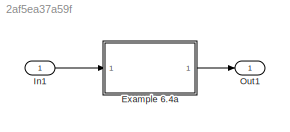
MODEL slx_2af5ea37a59f
KIND model
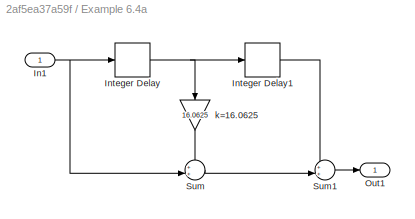
BLOCK [SubSystem] Example 6.4a
  Ports = [1, 1]
  RequestExecContextInheritance = off
BLOCK [Inport] Example 6.4a/In1
  IconDisplay = Port number
BLOCK [Delay] Example 6.4a/Integer Delay
  DelayLength = 4
  InputPortMap = u0
  InputProcessing = Inherited
  Ports = [1, 1]
BLOCK [Delay] Example 6.4a/Integer Delay1
  DelayLength = 4
  InputPortMap = u0
  InputProcessing = Inherited
  Ports = [1, 1]
BLOCK [Outport] Example 6.4a/Out1
  IconDisplay = Port number
BLOCK [Sum] Example 6.4a/Sum
  IconShape = round
  InputSameDT = off
  Inputs = ++|
  OutDataTypeStr = Inherit: Inherit via internal rule
  Ports = [2, 1]
  SaturateOnIntegerOverflow = off
BLOCK [Sum] Example 6.4a/Sum1
  IconShape = round
  InputSameDT = off
  Inputs = ++|
  OutDataTypeStr = Inherit: Inherit via internal rule
  Ports = [2, 1]
  SaturateOnIntegerOverflow = off
BLOCK [Gain] Example 6.4a/k=16.0625
  Gain = 16.0625
  OutDataTypeStr = Inherit: Inherit via internal rule
  ParamDataTypeStr = Inherit: Inherit via internal rule
  SaturateOnIntegerOverflow = off
BLOCK [Inport] In1
  IconDisplay = Port number
BLOCK [Outport] Out1
  IconDisplay = Port number
NET Example 6.4a/In1:1 -> Example 6.4a/Integer Delay:1, Example 6.4a/Sum:2
LINE Example 6.4a/Integer Delay1:1 -> Example 6.4a/Sum1:1
NET Example 6.4a/Integer Delay:1 -> Example 6.4a/Integer Delay1:1, Example 6.4a/k=16.0625:1
LINE Example 6.4a/Sum1:1 -> Example 6.4a/Out1:1
LINE Example 6.4a/Sum:1 -> Example 6.4a/Sum1:2
LINE Example 6.4a/k=16.0625:1 -> Example 6.4a/Sum:1
LINE Example 6.4a:1 -> Out1:1
LINE In1:1 -> Example 6.4a:1
note: NET lines group one-source signal fan-out (src -> all destinations, sorted); 1:1 wires keep LINE
